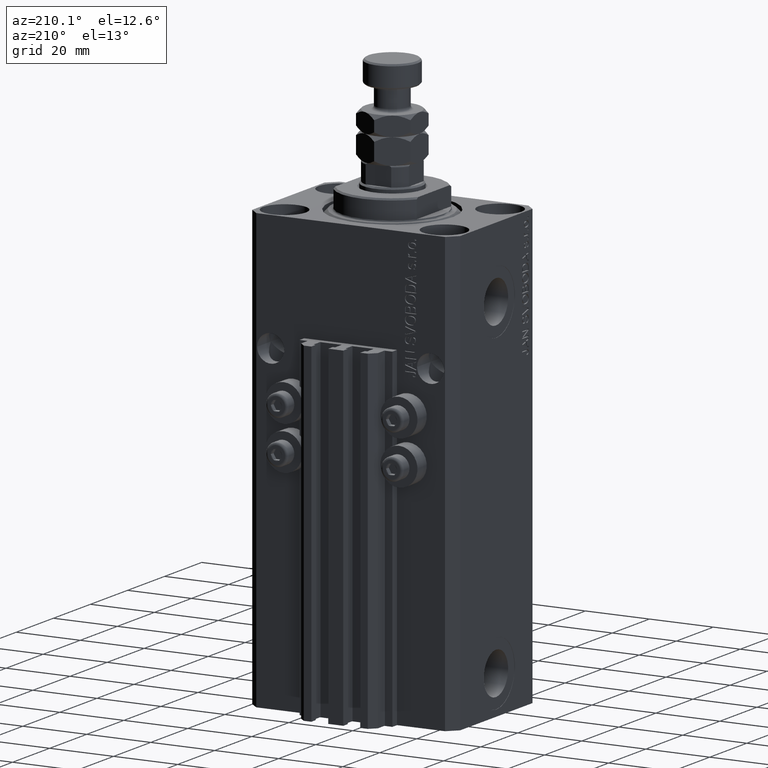
[diagram: clean part render]
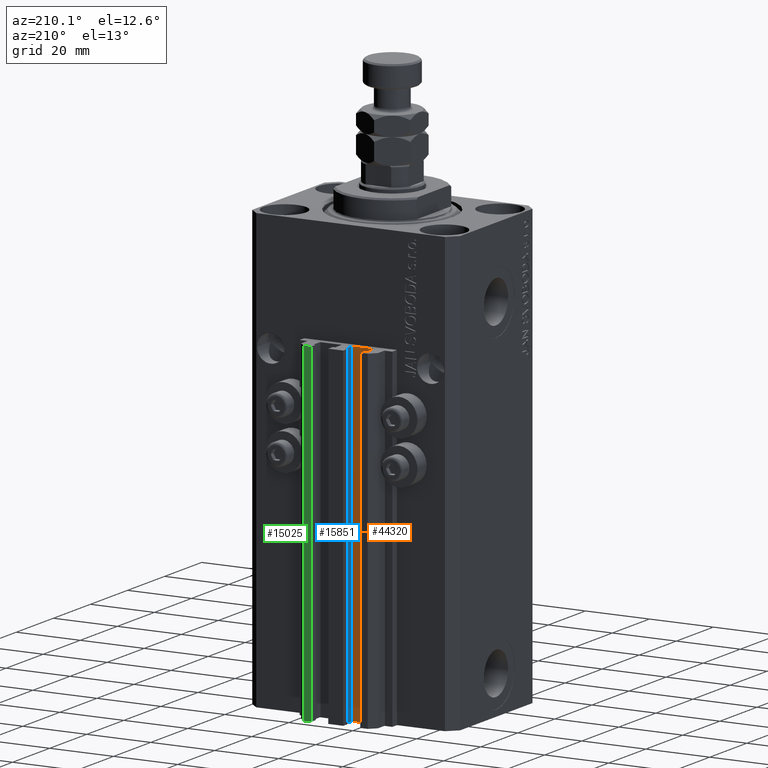
[diagram: same view with three faces highlighted in distinct colors, each labeled with its STEP entity id]
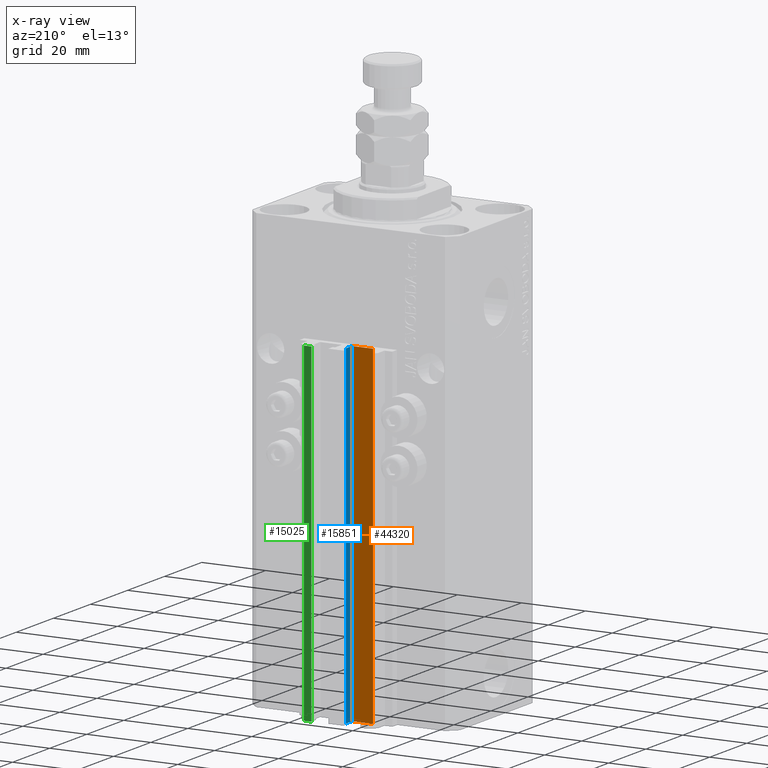
[diagram: x-ray of the same camera — body ghosted, the three highlighted faces saturated]
A machine part, auxiliary view with three faces highlighted in distinct colors.
The next image is the same camera in x-ray (body ghosted, the three faces saturated) — at least one of them is partly hidden behind the body in this view.
Their STEP definitions:

[orange] entity #44320 — the highlighted planar face has unit normal (0, 1, 0).
#5142 = DIRECTION ( 'NONE',  ( 0.000000000000000000, 0.000000000000000000, 1.000000000000000000 ) ) ;
#7394 = CARTESIAN_POINT ( 'NONE',  ( -8.199999999999999289, 24.49999999999949551, -137.0000000000000000 ) ) ;
#8056 = CARTESIAN_POINT ( 'NONE',  ( -8.199999999999999289, 24.49999999999949551, -137.0000000000000000 ) ) ;
#8543 = VECTOR ( 'NONE', #23136, 1000.000000000000000 ) ;
#9426 = EDGE_CURVE ( 'NONE', #12605, #47877, #30461, .T. ) ;
#9547 = DIRECTION ( 'NONE',  ( 0.000000000000000000, 0.000000000000000000, 1.000000000000000000 ) ) ;
#10108 = CARTESIAN_POINT ( 'NONE',  ( -1.800000000000000933, 24.49999999999949551, -137.0000000000000000 ) ) ;
#12605 = VERTEX_POINT ( 'NONE', #10108 ) ;
#13110 = VECTOR ( 'NONE', #9547, 1000.000000000000000 ) ;
#13180 = ORIENTED_EDGE ( 'NONE', *, *, #17901, .F. ) ;
#15251 = CARTESIAN_POINT ( 'NONE',  ( -1.800000000000000933, 24.49999999999949551, -33.00000000000000000 ) ) ;
#17831 = CARTESIAN_POINT ( 'NONE',  ( -8.199999999999999289, 24.49999999999949551, -33.00000000000000000 ) ) ;
#17901 = EDGE_CURVE ( 'NONE', #12605, #36849, #28784, .T. ) ;
#20718 = FACE_OUTER_BOUND ( 'NONE', #31163, .T. ) ;
#21451 = ORIENTED_EDGE ( 'NONE', *, *, #44270, .T. ) ;
#22810 = DIRECTION ( 'NONE',  ( -1.000000000000000000, 0.000000000000000000, 0.000000000000000000 ) ) ;
#23136 = DIRECTION ( 'NONE',  ( -1.000000000000000000, 0.000000000000000000, 0.000000000000000000 ) ) ;
#28148 = EDGE_CURVE ( 'NONE', #36849, #30530, #34473, .T. ) ;
#28688 = VECTOR ( 'NONE', #30839, 1000.000000000000000 ) ;
#28784 = LINE ( 'NONE', #32244, #13110 ) ;
#30461 = LINE ( 'NONE', #44755, #42854 ) ;
#30530 = VERTEX_POINT ( 'NONE', #17831 ) ;
#30839 = DIRECTION ( 'NONE',  ( 0.000000000000000000, 0.000000000000000000, 1.000000000000000000 ) ) ;
#31163 = EDGE_LOOP ( 'NONE', ( #45867, #13180, #31179, #21451 ) ) ;
#31179 = ORIENTED_EDGE ( 'NONE', *, *, #9426, .T. ) ;
#32244 = CARTESIAN_POINT ( 'NONE',  ( -1.800000000000000933, 24.49999999999949551, -137.0000000000000000 ) ) ;
#34473 = LINE ( 'NONE', #15251, #8543 ) ;
#35021 = PLANE ( 'NONE',  #38170 ) ;
#35278 = CARTESIAN_POINT ( 'NONE',  ( -1.800000000000000933, 24.49999999999949551, -33.00000000000000000 ) ) ;
#36849 = VERTEX_POINT ( 'NONE', #35278 ) ;
#38170 = AXIS2_PLACEMENT_3D ( 'NONE', #38959, #42652, #5142 ) ;
#38959 = CARTESIAN_POINT ( 'NONE',  ( -1.800000000000000933, 24.49999999999949551, -137.0000000000000000 ) ) ;
#42652 = DIRECTION ( 'NONE',  ( 0.000000000000000000, 1.000000000000000000, -0.000000000000000000 ) ) ;
#42854 = VECTOR ( 'NONE', #22810, 1000.000000000000000 ) ;
#44270 = EDGE_CURVE ( 'NONE', #47877, #30530, #45619, .T. ) ;
#44320 = ADVANCED_FACE ( 'NONE', ( #20718 ), #35021, .T. ) ;
#44755 = CARTESIAN_POINT ( 'NONE',  ( -1.800000000000000933, 24.49999999999949551, -137.0000000000000000 ) ) ;
#45619 = LINE ( 'NONE', #7394, #28688 ) ;
#45867 = ORIENTED_EDGE ( 'NONE', *, *, #28148, .F. ) ;
#47877 = VERTEX_POINT ( 'NONE', #8056 ) ;

[blue] entity #15851 — the highlighted planar face has unit normal (-1, 0, 0).
#403 = CARTESIAN_POINT ( 'NONE',  ( -1.600000000000000755, 24.69999999999949480, -33.00000000000000000 ) ) ;
#729 = VERTEX_POINT ( 'NONE', #48672 ) ;
#4075 = DIRECTION ( 'NONE',  ( 0.000000000000000000, 0.000000000000000000, 1.000000000000000000 ) ) ;
#4118 = CARTESIAN_POINT ( 'NONE',  ( -1.600000000000000755, 24.69999999999949480, -137.0000000000000000 ) ) ;
#4234 = VECTOR ( 'NONE', #32571, 1000.000000000000000 ) ;
#5053 = CARTESIAN_POINT ( 'NONE',  ( -1.600000000000003197, 27.89999999999950120, -137.0000000000000000 ) ) ;
#5928 = VECTOR ( 'NONE', #28023, 1000.000000000000000 ) ;
#7851 = PLANE ( 'NONE',  #39021 ) ;
#11207 = EDGE_CURVE ( 'NONE', #729, #28113, #17023, .T. ) ;
#11475 = ORIENTED_EDGE ( 'NONE', *, *, #17206, .F. ) ;
#13991 = EDGE_CURVE ( 'NONE', #18504, #20975, #45551, .T. ) ;
#15851 = ADVANCED_FACE ( 'NONE', ( #34742 ), #7851, .T. ) ;
#16777 = DIRECTION ( 'NONE',  ( -6.776263578034385456E-17, -1.000000000000000000, 0.000000000000000000 ) ) ;
#17023 = LINE ( 'NONE', #43603, #44470 ) ;
#17168 = LINE ( 'NONE', #5053, #5928 ) ;
#17206 = EDGE_CURVE ( 'NONE', #18504, #729, #17168, .T. ) ;
#17551 = CARTESIAN_POINT ( 'NONE',  ( -1.600000000000000533, 27.89999999999950120, -137.0000000000000000 ) ) ;
#18504 = VERTEX_POINT ( 'NONE', #40185 ) ;
#19416 = CARTESIAN_POINT ( 'NONE',  ( -1.600000000000000755, 24.69999999999949480, -137.0000000000000000 ) ) ;
#20975 = VERTEX_POINT ( 'NONE', #4118 ) ;
#21946 = ORIENTED_EDGE ( 'NONE', *, *, #22874, .T. ) ;
#22874 = EDGE_CURVE ( 'NONE', #20975, #28113, #37893, .T. ) ;
#27101 = ORIENTED_EDGE ( 'NONE', *, *, #11207, .F. ) ;
#27258 = ORIENTED_EDGE ( 'NONE', *, *, #13991, .T. ) ;
#27590 = DIRECTION ( 'NONE',  ( -6.776263578034386689E-17, -1.000000000000000000, 0.000000000000000000 ) ) ;
#28023 = DIRECTION ( 'NONE',  ( 0.000000000000000000, 0.000000000000000000, 1.000000000000000000 ) ) ;
#28113 = VERTEX_POINT ( 'NONE', #403 ) ;
#28237 = VECTOR ( 'NONE', #4075, 1000.000000000000000 ) ;
#28542 = DIRECTION ( 'NONE',  ( -1.000000000000000000, 6.776263578034386689E-17, 0.000000000000000000 ) ) ;
#32571 = DIRECTION ( 'NONE',  ( -6.776263578034385456E-17, -1.000000000000000000, 0.000000000000000000 ) ) ;
#34742 = FACE_OUTER_BOUND ( 'NONE', #42892, .T. ) ;
#37893 = LINE ( 'NONE', #19416, #28237 ) ;
#37952 = CARTESIAN_POINT ( 'NONE',  ( -1.600000000000000533, 27.89999999999950120, -137.0000000000000000 ) ) ;
#39021 = AXIS2_PLACEMENT_3D ( 'NONE', #37952, #28542, #27590 ) ;
#40185 = CARTESIAN_POINT ( 'NONE',  ( -1.600000000000003197, 27.89999999999950120, -137.0000000000000000 ) ) ;
#42892 = EDGE_LOOP ( 'NONE', ( #27101, #11475, #27258, #21946 ) ) ;
#43603 = CARTESIAN_POINT ( 'NONE',  ( -1.600000000000000533, 27.89999999999950120, -33.00000000000000000 ) ) ;
#44470 = VECTOR ( 'NONE', #16777, 1000.000000000000000 ) ;
#45551 = LINE ( 'NONE', #17551, #4234 ) ;
#48672 = CARTESIAN_POINT ( 'NONE',  ( -1.600000000000003197, 27.89999999999950120, -33.00000000000000000 ) ) ;

[green] entity #15025 — the highlighted planar face has unit normal (-0, 1, 0).
#256 = CARTESIAN_POINT ( 'NONE',  ( 7.649999999999995026, 30.49999999999949196, -137.0000000000000000 ) ) ;
#1756 = ORIENTED_EDGE ( 'NONE', *, *, #17476, .F. ) ;
#4624 = VERTEX_POINT ( 'NONE', #13441 ) ;
#5088 = AXIS2_PLACEMENT_3D ( 'NONE', #38430, #15021, #30800 ) ;
#6230 = VERTEX_POINT ( 'NONE', #256 ) ;
#9467 = VECTOR ( 'NONE', #33070, 1000.000000000000000 ) ;
#9644 = LINE ( 'NONE', #24694, #9467 ) ;
#10721 = CARTESIAN_POINT ( 'NONE',  ( 7.649999999999995026, 30.49999999999949196, -33.00000000000000000 ) ) ;
#11850 = DIRECTION ( 'NONE',  ( 0.000000000000000000, 0.000000000000000000, 1.000000000000000000 ) ) ;
#12428 = VERTEX_POINT ( 'NONE', #10721 ) ;
#13441 = CARTESIAN_POINT ( 'NONE',  ( 9.999999999999994671, 30.49999999999949551, -137.0000000000000000 ) ) ;
#14845 = CARTESIAN_POINT ( 'NONE',  ( 9.999999999999994671, 30.49999999999949551, -137.0000000000000000 ) ) ;
#14936 = VECTOR ( 'NONE', #24196, 1000.000000000000000 ) ;
#15021 = DIRECTION ( 'NONE',  ( -1.476360405086645049E-15, 1.000000000000000000, 0.000000000000000000 ) ) ;
#15025 = ADVANCED_FACE ( 'NONE', ( #45579 ), #34490, .T. ) ;
#17323 = CARTESIAN_POINT ( 'NONE',  ( 7.649999999999995026, 30.49999999999949196, -137.0000000000000000 ) ) ;
#17476 = EDGE_CURVE ( 'NONE', #4624, #43911, #30858, .T. ) ;
#18054 = LINE ( 'NONE', #17323, #46048 ) ;
#21000 = ORIENTED_EDGE ( 'NONE', *, *, #35928, .T. ) ;
#24196 = DIRECTION ( 'NONE',  ( -1.000000000000000000, -1.476360405086644852E-15, 0.000000000000000000 ) ) ;
#24694 = CARTESIAN_POINT ( 'NONE',  ( 9.999999999999994671, 30.49999999999949551, -137.0000000000000000 ) ) ;
#25214 = EDGE_CURVE ( 'NONE', #43911, #12428, #28137, .T. ) ;
#25969 = CARTESIAN_POINT ( 'NONE',  ( 9.999999999999994671, 30.49999999999949551, -33.00000000000000000 ) ) ;
#28137 = LINE ( 'NONE', #42681, #14936 ) ;
#30636 = ORIENTED_EDGE ( 'NONE', *, *, #44883, .T. ) ;
#30800 = DIRECTION ( 'NONE',  ( -1.000000000000000000, -1.476360405086645049E-15, 0.000000000000000000 ) ) ;
#30858 = LINE ( 'NONE', #14845, #38283 ) ;
#33070 = DIRECTION ( 'NONE',  ( -1.000000000000000000, -1.476360405086644852E-15, 0.000000000000000000 ) ) ;
#34490 = PLANE ( 'NONE',  #5088 ) ;
#35928 = EDGE_CURVE ( 'NONE', #4624, #6230, #9644, .T. ) ;
#38210 = ORIENTED_EDGE ( 'NONE', *, *, #25214, .F. ) ;
#38283 = VECTOR ( 'NONE', #11850, 1000.000000000000000 ) ;
#38430 = CARTESIAN_POINT ( 'NONE',  ( 9.999999999999994671, 30.49999999999949551, -137.0000000000000000 ) ) ;
#40005 = EDGE_LOOP ( 'NONE', ( #38210, #1756, #21000, #30636 ) ) ;
#42681 = CARTESIAN_POINT ( 'NONE',  ( 9.999999999999994671, 30.49999999999949551, -33.00000000000000000 ) ) ;
#43911 = VERTEX_POINT ( 'NONE', #25969 ) ;
#44883 = EDGE_CURVE ( 'NONE', #6230, #12428, #18054, .T. ) ;
#45579 = FACE_OUTER_BOUND ( 'NONE', #40005, .T. ) ;
#46048 = VECTOR ( 'NONE', #47137, 1000.000000000000000 ) ;
#47137 = DIRECTION ( 'NONE',  ( 0.000000000000000000, 0.000000000000000000, 1.000000000000000000 ) ) ;